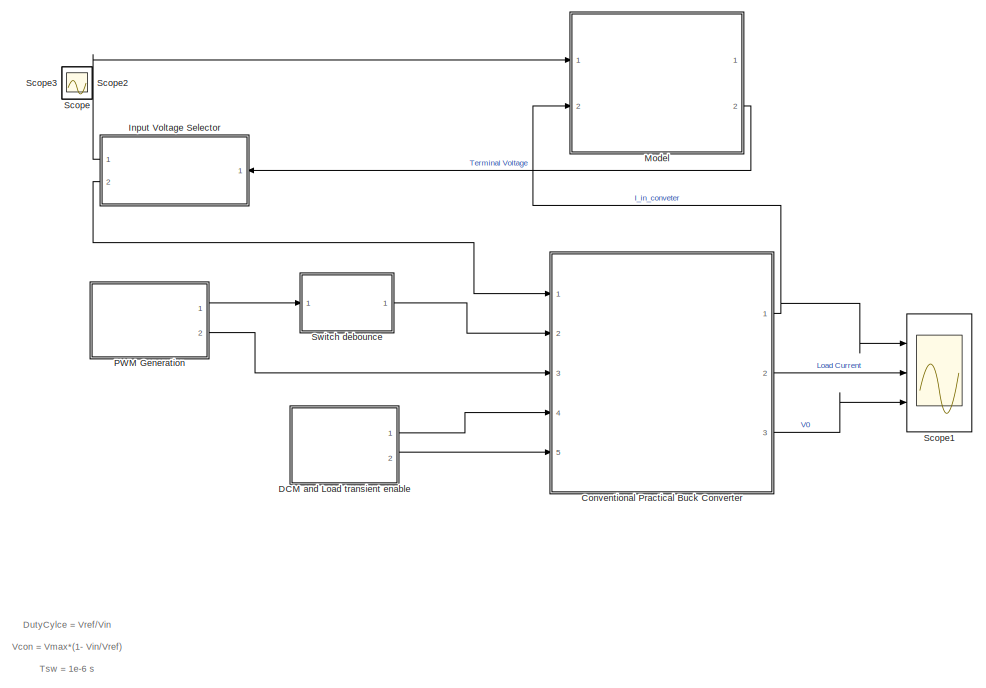
[diagram: root canvas - part 1/2, left side, full height]
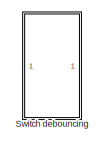
[diagram: root canvas - part 2/2, bottom right region]
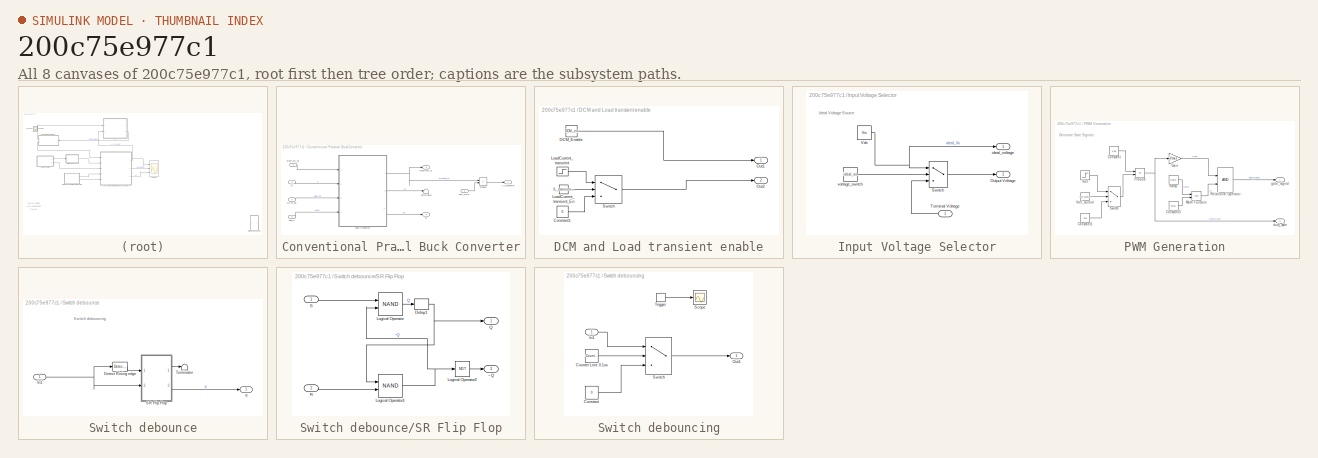
[diagram: thumbnail index - all 8 canvases of the model, root first then tree order]
MODEL slx_200c75e977c1
KIND model
CONFIG AbsTol = auto
CONFIG EnableMultiTasking = off
CONFIG FixedStep = Ts
CONFIG InitFcn = init_practical_voltage_source;\ninit_conventional_buck_lec13;
CONFIG MaxStep = auto
CONFIG MinStep = auto
CONFIG PostLoadFcn = , if any(exist('dsrtsu_mdlpostloadfcn', 'file') == [2, 3, 6]), try dsrtsu_mdlpostloadfcn('Execute', bdroot); catch fprintf('Error in PostLoadFcn (dsrtsu_mdlpostloadfcn) for model "%s":\n %s\n', bdroot, lasterr); end, end, \ninit_practical_voltage_source;\ninit_conventional_buck_lec13;\n
CONFIG RelTol = 1e-3
CONFIG SampleTimeConstraint = Unconstrained
CONFIG Solver = ode1
CONFIG SolverName = ode1
CONFIG StartTime = 0.0
CONFIG StopTime = 2e-3
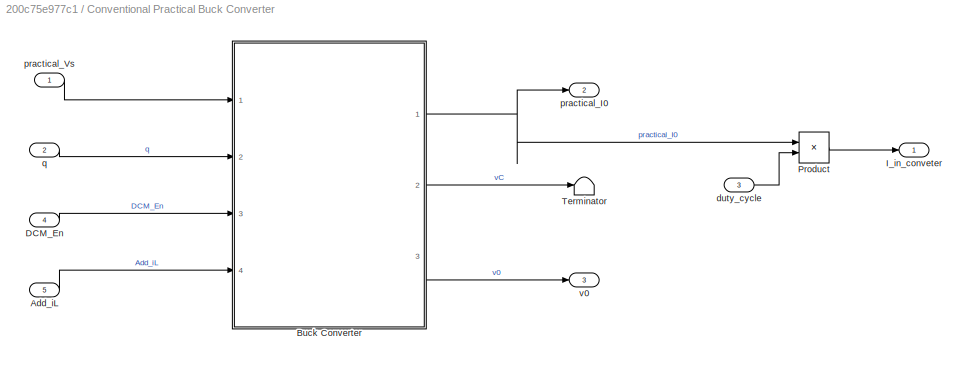
BLOCK [SubSystem] Conventional Practical Buck Converter
  Ports = [5, 3]
  RequestExecContextInheritance = off
  Variant = off
BLOCK [Inport] Conventional Practical Buck Converter/Add_iL
  IconDisplay = Port number
  Port = 5
BLOCK [ModelReference] Conventional Practical Buck Converter/Buck Converter
  ModelNameDialog = convetional_buck.slx
  ModelReferenceVersion = 1.35
  Ports = [4, 3]
  Variant = off
BLOCK [Inport] Conventional Practical Buck Converter/DCM_En
  IconDisplay = Port number
  Port = 4
BLOCK [Outport] Conventional Practical Buck Converter/I_in_conveter
  IconDisplay = Port number
BLOCK [Product] Conventional Practical Buck Converter/Product
  InputSameDT = off
  OutDataTypeStr = Inherit: Inherit via internal rule
  Ports = [2, 1]
  RndMeth = Floor
  SaturateOnIntegerOverflow = off
BLOCK [Terminator] Conventional Practical Buck Converter/Terminator
BLOCK [Inport] Conventional Practical Buck Converter/duty_cycle
  IconDisplay = Port number
  Port = 3
BLOCK [Outport] Conventional Practical Buck Converter/practical_I0
  IconDisplay = Port number
  Port = 2
BLOCK [Inport] Conventional Practical Buck Converter/practical_Vs
  IconDisplay = Port number
BLOCK [Inport] Conventional Practical Buck Converter/q
  IconDisplay = Port number
  Port = 2
BLOCK [Outport] Conventional Practical Buck Converter/v0
  IconDisplay = Port number
  Port = 3
BLOCK [SubSystem] DCM and Load transient enable
  Ports = [0, 2]
  RequestExecContextInheritance = off
  Variant = off
BLOCK [Constant] DCM and Load transient enable/Constant1
  Value = 0
BLOCK [Constant] DCM and Load transient enable/DCM_Enable
  OutDataTypeStr = boolean
  Value = DCM_en
BLOCK [Step] DCM and Load transient enable/LoadCurrent_transient
  After = 4
  Before = 2
  Time = 1.5e-3
BLOCK [Constant] DCM and Load transient enable/LoadCurrent_transient_En
  OutDataTypeStr = boolean
  Value = IL_transient_en
BLOCK [Outport] DCM and Load transient enable/Out1
  IconDisplay = Port number
BLOCK [Outport] DCM and Load transient enable/Out2
  IconDisplay = Port number
  Port = 2
BLOCK [Switch] DCM and Load transient enable/Switch
  Criteria = u2 > Threshold
  InputSameDT = off
  SaturateOnIntegerOverflow = off
BLOCK [SubSystem] Input Voltage Selector
  Ports = [1, 2]
  RequestExecContextInheritance = off
  Variant = off
BLOCK [Outport] Input Voltage Selector/Output Voltage
  IconDisplay = Port number
  Port = 2
BLOCK [Switch] Input Voltage Selector/Switch
  Criteria = u2 > Threshold
  InputSameDT = off
  SaturateOnIntegerOverflow = off
BLOCK [Inport] Input Voltage Selector/Terminal Voltage
  IconDisplay = Port number
BLOCK [Constant] Input Voltage Selector/Vdc
  Value = Vin
BLOCK [Outport] Input Voltage Selector/ideal_voltage
  IconDisplay = Port number
BLOCK [Constant] Input Voltage Selector/voltage_switch
  Value = ideal_en
BLOCK [ModelReference] Model
  ModelNameDialog = practical_voltage_source.slx
  ModelReferenceVersion = 1.13
  Ports = [2, 2]
  Variant = off
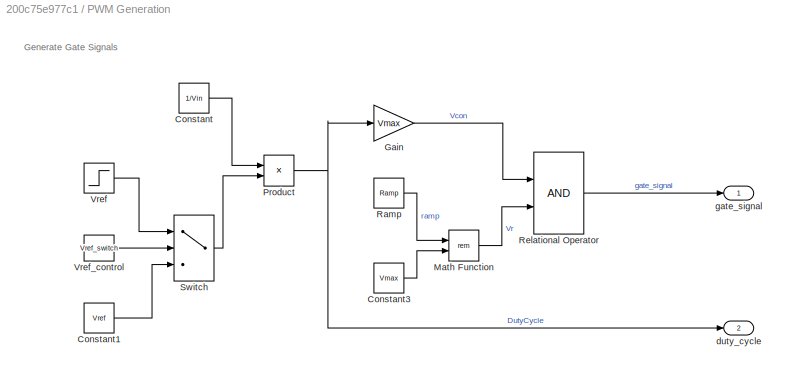
BLOCK [SubSystem] PWM Generation
  Ports = [0, 2]
  RequestExecContextInheritance = off
  Variant = off
BLOCK [Constant] PWM Generation/Constant
  Value = 1/Vin
BLOCK [Constant] PWM Generation/Constant1
  Value = Vref
BLOCK [Constant] PWM Generation/Constant3
  Value = Vmax
BLOCK [Gain] PWM Generation/Gain
  Gain = Vmax
  OutDataTypeStr = Inherit: Inherit via internal rule
  ParamDataTypeStr = Inherit: Inherit via internal rule
  SaturateOnIntegerOverflow = off
BLOCK [Math] PWM Generation/Math Function
  Operator = rem
  Ports = [2, 1]
BLOCK [Product] PWM Generation/Product
  InputSameDT = off
  OutDataTypeStr = Inherit: Inherit via internal rule
  Ports = [2, 1]
  RndMeth = Floor
  SaturateOnIntegerOverflow = off
BLOCK [Reference] PWM Generation/Ramp  REF=simulink/Sources/Ramp
  Ports = [0, 1]
  SourceBlock = simulink/Sources/Ramp
  SourceProductBaseCode = SL
  SourceProductName = Simulink
  SourceType = Ramp
BLOCK [RelationalOperator] PWM Generation/Relational Operator
  InputSameDT = off
  OutDataTypeStr = boolean
  Ports = [2, 1]
  RndMeth = Simplest
BLOCK [Switch] PWM Generation/Switch
  Criteria = u2 > Threshold
  InputSameDT = off
  SaturateOnIntegerOverflow = off
BLOCK [Step] PWM Generation/Vref
  After = Vref-1
  Before = Vref
  Time = 1.05e-3
BLOCK [Constant] PWM Generation/Vref_control
  Value = Vref_switch
BLOCK [Outport] PWM Generation/duty_cycle
  IconDisplay = Port number
  Port = 2
BLOCK [Outport] PWM Generation/gate_signal
  IconDisplay = Port number
BLOCK [Scope] Scope
  IOType = viewer
  NumInputPorts = 1
  Ports = []
  ScopeSpecificationString = Simulink.scopes.TimeScopeBlockCfg('CurrentConfiguration', extmgr.ConfigurationSet(extmgr.Configuration('Core','General UI',true),extmgr.Configuration('Core','Source UI',true),extmgr.Configuration('Sources','WiredSimulink',true,'DataLoggingVariableName','ScopeData1'),extmgr.Configuration('Visuals','Time Domain',true,'SerializedDisplays',{struct('MinYLimReal','-0.125','MaxYLimReal','1.125','YLabelRe...<+1394ch>
BLOCK [Scope] Scope1
  NumInputPorts = 3
  Ports = [3]
  ScopeSpecificationString = Simulink.scopes.TimeScopeBlockCfg('CurrentConfiguration', extmgr.ConfigurationSet(extmgr.Configuration('Core','General UI',true),extmgr.Configuration('Core','Source UI',true),extmgr.Configuration('Sources','WiredSimulink',true,'DataLoggingVariableName','ScopeData2'),extmgr.Configuration('Visuals','Time Domain',true,'SerializedDisplays',{struct('MinYLimReal','-0.12594','MaxYLimReal','1.10915','YLab...<+2799ch>
BLOCK [Scope] Scope2
  IOType = viewer
  NumInputPorts = 1
  Ports = []
  ScopeSpecificationString = Simulink.scopes.TimeScopeBlockCfg('CurrentConfiguration', extmgr.ConfigurationSet(extmgr.Configuration('Core','General UI',true),extmgr.Configuration('Core','Source UI',true),extmgr.Configuration('Sources','WiredSimulink',true,'DataLoggingVariableName','ScopeData1'),extmgr.Configuration('Visuals','Time Domain',true,'SerializedDisplays',{struct('MinYLimReal','-0.125','MaxYLimReal','1.125','YLabelRe...<+1482ch>
BLOCK [Scope] Scope3
  IOType = viewer
  NumInputPorts = 1
  Ports = []
  ScopeSpecificationString = Simulink.scopes.TimeScopeBlockCfg('CurrentConfiguration', extmgr.ConfigurationSet(extmgr.Configuration('Core','General UI',true),extmgr.Configuration('Core','Source UI',true),extmgr.Configuration('Sources','WiredSimulink',true,'DataLoggingVariableName','ScopeData2'),extmgr.Configuration('Visuals','Time Domain',true,'SerializedDisplays',{struct('MinYLimReal','-5.75','MaxYLimReal','51.75','YLabelRea...<+1775ch>
BLOCK [SubSystem] Switch debounce
  Ports = [1, 1]
  RequestExecContextInheritance = off
  Variant = off
BLOCK [Reference] Switch debounce/Detect Rising edge  REF=simulink/Logic and Bit
Operations/Detect
Increase
  Ports = [1, 1]
  SourceBlock = simulink/Logic and Bit\nOperations/Detect\nIncrease
  SourceProductBaseCode = SL
  SourceProductName = Simulink
  SourceType = Detect Increase
BLOCK [Inport] Switch debounce/In1
  IconDisplay = Port number
BLOCK [SubSystem] Switch debounce/SR Flip Flop
  Ports = [2, 2]
  RequestExecContextInheritance = off
  Variant = off
BLOCK [Delay] Switch debounce/SR Flip Flop/Delay1
  DelayLength = 1
  InputPortMap = u0
  Ports = [1, 1]
BLOCK [Logic] Switch debounce/SR Flip Flop/Logical Operator
  AllPortsSameDT = off
  IconShape = distinctive
  Operator = NAND
  OutDataTypeStr = boolean
  Ports = [2, 1]
BLOCK [Logic] Switch debounce/SR Flip Flop/Logical Operator1
  AllPortsSameDT = off
  IconShape = distinctive
  Operator = NAND
  OutDataTypeStr = boolean
  Ports = [2, 1]
BLOCK [Logic] Switch debounce/SR Flip Flop/Logical Operator2
  AllPortsSameDT = off
  IconShape = distinctive
  Operator = NOT
  OutDataTypeStr = boolean
  Ports = [1, 1]
BLOCK [Outport] Switch debounce/SR Flip Flop/Q
  IconDisplay = Port number
BLOCK [Inport] Switch debounce/SR Flip Flop/R
  IconDisplay = Port number
  Port = 2
BLOCK [Inport] Switch debounce/SR Flip Flop/S
  IconDisplay = Port number
BLOCK [Outport] Switch debounce/SR Flip Flop/~Q
  IconDisplay = Port number
  Port = 2
BLOCK [Terminator] Switch debounce/Terminator
BLOCK [Outport] Switch debounce/q
  IconDisplay = Port number
BLOCK [SubSystem] Switch debouncing
  Commented = on
  Ports = [1, 1, 0, 1]
  RequestExecContextInheritance = off
  TreatAsAtomicUnit = on
  Variant = off
BLOCK [Constant] Switch debouncing/Constant
  Value = 0
BLOCK [Reference] Switch debouncing/Counter Linit: 0.1us  REF=simulink/Sources/Counter
Limited
  Ports = [0, 1]
  SourceBlock = simulink/Sources/Counter\nLimited
  SourceProductBaseCode = SL
  SourceProductName = Simulink
  SourceType = Counter Limited
BLOCK [Inport] Switch debouncing/In1
  IconDisplay = Port number
BLOCK [Outport] Switch debouncing/Out1
  IconDisplay = Port number
BLOCK [Scope] Switch debouncing/Scope
  NumInputPorts = 1
  Ports = [1]
  ScopeSpecificationString = Simulink.scopes.TimeScopeBlockCfg('CurrentConfiguration', extmgr.ConfigurationSet(extmgr.Configuration('Core','General UI',true),extmgr.Configuration('Core','Source UI',true),extmgr.Configuration('Sources','WiredSimulink',true,'DataLoggingVariableName','ScopeData4'),extmgr.Configuration('Visuals','Time Domain',true,'SerializedDisplays',{struct('MinYLimReal','0.9','MaxYLimReal','1.1','YLabelReal','...<+1357ch>
BLOCK [Switch] Switch debouncing/Switch
  InputSameDT = off
  SaturateOnIntegerOverflow = off
  Threshold = (0.45e-6/Ts) + 1
BLOCK [TriggerPort] Switch debouncing/Trigger
  PortDimensions = 1
  Ports = [0, 1]
  ShowOutputPort = on
  StatesWhenEnabling = held
  VariantControl = Variant
ANNOTATION (root): DutyCylce = Vref/Vin Vcon = Vmax*(1- Vin/Vref) Tsw = 1e-6 s Vref starts with 3.3V and after 1ms, it is set to 2.3V. DutyCycle shall be adapted accordingly and coverter states can be observed. Ideal voltage source is replaced by practical voltage source to aacout for psu output impedance (i.e. output resistance and finit bandwidt) Input voltage selector lets selection between ideal and practical vo...<+57ch>
ANNOTATION Input Voltage Selector: Ideal Voltage Source
ANNOTATION PWM Generation: Generate Gate Signals
ANNOTATION Switch debounce: Switch debouncing
LINE Conventional Practical Buck Converter/Add_iL:1 -> Conventional Practical Buck Converter/Buck Converter:4
NET Conventional Practical Buck Converter/Buck Converter:1 -> Conventional Practical Buck Converter/Product:1, Conventional Practical Buck Converter/practical_I0:1
LINE Conventional Practical Buck Converter/Buck Converter:2 -> Conventional Practical Buck Converter/Terminator:1
LINE Conventional Practical Buck Converter/Buck Converter:3 -> Conventional Practical Buck Converter/v0:1
LINE Conventional Practical Buck Converter/DCM_En:1 -> Conventional Practical Buck Converter/Buck Converter:3
LINE Conventional Practical Buck Converter/Product:1 -> Conventional Practical Buck Converter/I_in_conveter:1
LINE Conventional Practical Buck Converter/duty_cycle:1 -> Conventional Practical Buck Converter/Product:2
LINE Conventional Practical Buck Converter/practical_Vs:1 -> Conventional Practical Buck Converter/Buck Converter:1
LINE Conventional Practical Buck Converter/q:1 -> Conventional Practical Buck Converter/Buck Converter:2
NET Conventional Practical Buck Converter:1 -> Model:2, Scope1:1
LINE Conventional Practical Buck Converter:2 -> Scope1:2
LINE Conventional Practical Buck Converter:3 -> Scope1:3
LINE DCM and Load transient enable/Constant1:1 -> DCM and Load transient enable/Switch:3
LINE DCM and Load transient enable/DCM_Enable:1 -> DCM and Load transient enable/Out1:1
LINE DCM and Load transient enable/LoadCurrent_transient:1 -> DCM and Load transient enable/Switch:1
LINE DCM and Load transient enable/LoadCurrent_transient_En:1 -> DCM and Load transient enable/Switch:2
LINE DCM and Load transient enable/Switch:1 -> DCM and Load transient enable/Out2:1
LINE DCM and Load transient enable:1 -> Conventional Practical Buck Converter:4
LINE DCM and Load transient enable:2 -> Conventional Practical Buck Converter:5
LINE Input Voltage Selector/Switch:1 -> Input Voltage Selector/Output Voltage:1
LINE Input Voltage Selector/Terminal Voltage:1 -> Input Voltage Selector/Switch:3
NET Input Voltage Selector/Vdc:1 -> Input Voltage Selector/Switch:1, Input Voltage Selector/ideal_voltage:1
LINE Input Voltage Selector/voltage_switch:1 -> Input Voltage Selector/Switch:2
LINE Input Voltage Selector:1 -> Model:1
LINE Input Voltage Selector:2 -> Conventional Practical Buck Converter:1
LINE Model:2 -> Input Voltage Selector:1
LINE PWM Generation/Constant1:1 -> PWM Generation/Switch:3
LINE PWM Generation/Constant3:1 -> PWM Generation/Math Function:2
LINE PWM Generation/Constant:1 -> PWM Generation/Product:1
LINE PWM Generation/Gain:1 -> PWM Generation/Relational Operator:1
LINE PWM Generation/Math Function:1 -> PWM Generation/Relational Operator:2
NET PWM Generation/Product:1 -> PWM Generation/Gain:1, PWM Generation/duty_cycle:1
LINE PWM Generation/Ramp:1 -> PWM Generation/Math Function:1
LINE PWM Generation/Relational Operator:1 -> PWM Generation/gate_signal:1
LINE PWM Generation/Switch:1 -> PWM Generation/Product:2
LINE PWM Generation/Vref:1 -> PWM Generation/Switch:1
LINE PWM Generation/Vref_control:1 -> PWM Generation/Switch:2
LINE PWM Generation:1 -> Switch debounce:1
LINE PWM Generation:2 -> Conventional Practical Buck Converter:3
LINE Switch debounce/Detect Rising edge:1 -> Switch debounce/SR Flip Flop:1
NET Switch debounce/In1:1 -> Switch debounce/Detect Rising edge:1, Switch debounce/SR Flip Flop:2
NET Switch debounce/SR Flip Flop/Delay1:1 -> Switch debounce/SR Flip Flop/Logical Operator1:1, Switch debounce/SR Flip Flop/Q:1
NET Switch debounce/SR Flip Flop/Logical Operator1:1 -> Switch debounce/SR Flip Flop/Logical Operator2:1, Switch debounce/SR Flip Flop/Logical Operator:2
LINE Switch debounce/SR Flip Flop/Logical Operator2:1 -> Switch debounce/SR Flip Flop/~Q:1
LINE Switch debounce/SR Flip Flop/Logical Operator:1 -> Switch debounce/SR Flip Flop/Delay1:1
LINE Switch debounce/SR Flip Flop/R:1 -> Switch debounce/SR Flip Flop/Logical Operator1:2
LINE Switch debounce/SR Flip Flop/S:1 -> Switch debounce/SR Flip Flop/Logical Operator:1
LINE Switch debounce/SR Flip Flop:1 -> Switch debounce/Terminator:1
LINE Switch debounce/SR Flip Flop:2 -> Switch debounce/q:1
LINE Switch debounce:1 -> Conventional Practical Buck Converter:2
LINE Switch debouncing/Constant:1 -> Switch debouncing/Switch:3
LINE Switch debouncing/Counter Linit: 0.1us:1 -> Switch debouncing/Switch:2
LINE Switch debouncing/In1:1 -> Switch debouncing/Switch:1
LINE Switch debouncing/Switch:1 -> Switch debouncing/Out1:1
LINE Switch debouncing/Trigger:1 -> Switch debouncing/Scope:1
note: NET lines group one-source signal fan-out (src -> all destinations, sorted); 1:1 wires keep LINE
